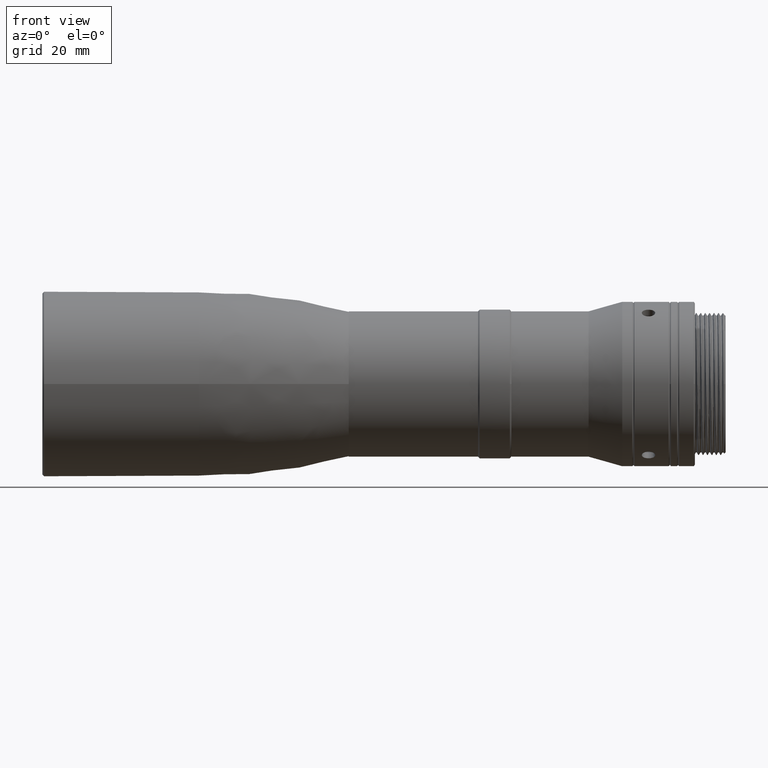
[diagram: clean part render]
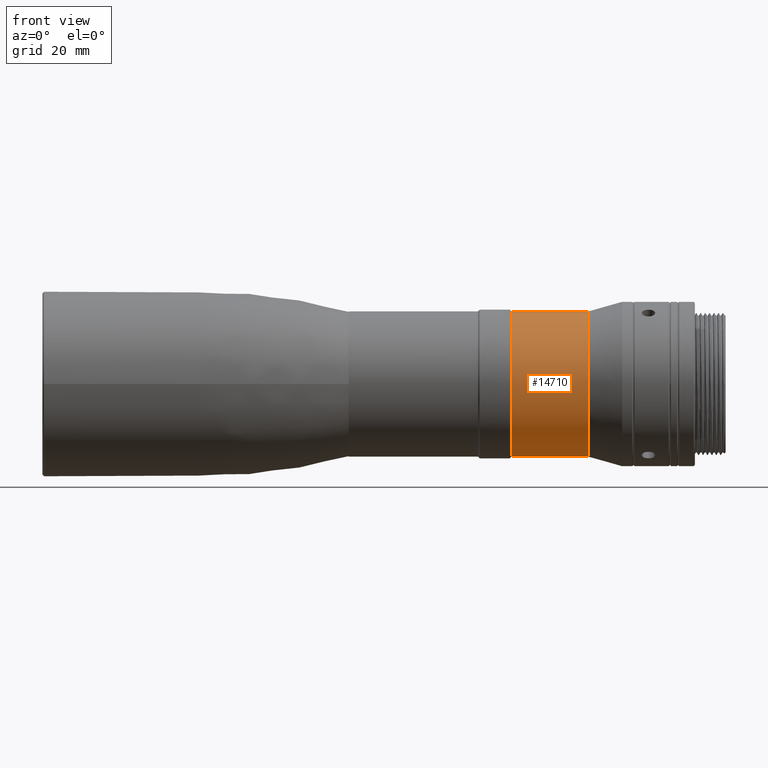
[diagram: same view with one face highlighted and labeled with its STEP entity id]
A machine part, front view. The second image highlights one B-rep face of the part: STEP entity #14710.
In plain terms, the highlighted cylindrical surface (partial cylindrical patch) has radius 13 mm, axis along (1, 0, -0).
Its self-contained STEP definition (entity closure, byte-faithful):
#571 = ORIENTED_EDGE ( 'NONE', *, *, #1409, .F. ) ;
#708 = EDGE_CURVE ( 'NONE', #1510, #6884, #8577, .T. ) ;
#1409 = EDGE_CURVE ( 'NONE', #10563, #6884, #10941, .T. ) ;
#1434 = DIRECTION ( 'NONE',  ( 1.000000000000000000, 0.000000000000000000, -1.334402673828313093E-16 ) ) ;
#1510 = VERTEX_POINT ( 'NONE', #13582 ) ;
#1827 = AXIS2_PLACEMENT_3D ( 'NONE', #7698, #7897, #18255 ) ;
#2170 = ORIENTED_EDGE ( 'NONE', *, *, #17284, .F. ) ;
#2239 = AXIS2_PLACEMENT_3D ( 'NONE', #18258, #13953, #3779 ) ;
#3674 = LINE ( 'NONE', #5293, #8969 ) ;
#3779 = DIRECTION ( 'NONE',  ( 0.000000000000000000, 0.000000000000000000, -1.000000000000000000 ) ) ;
#5293 = CARTESIAN_POINT ( 'NONE',  ( 29.11799999999999145, 1.592040838891559293E-15, 13.00000000000000178 ) ) ;
#5726 = CARTESIAN_POINT ( 'NONE',  ( 29.11799999999999145, 0.000000000000000000, -13.00000000000000178 ) ) ;
#5760 = EDGE_CURVE ( 'NONE', #11170, #1510, #18648, .T. ) ;
#6079 = EDGE_LOOP ( 'NONE', ( #2170, #11332, #10910, #571 ) ) ;
#6552 = DIRECTION ( 'NONE',  ( 1.000000000000000000, 0.000000000000000000, -1.334402673828313093E-16 ) ) ;
#6669 = FACE_OUTER_BOUND ( 'NONE', #6079, .T. ) ;
#6884 = VERTEX_POINT ( 'NONE', #13214 ) ;
#7698 = CARTESIAN_POINT ( 'NONE',  ( 42.91800000000000637, 0.000000000000000000, 0.000000000000000000 ) ) ;
#7897 = DIRECTION ( 'NONE',  ( 1.000000000000000000, 0.000000000000000000, 0.000000000000000000 ) ) ;
#7995 = CARTESIAN_POINT ( 'NONE',  ( 29.11799999999999145, 0.000000000000000000, 0.000000000000000000 ) ) ;
#8577 = LINE ( 'NONE', #5726, #10580 ) ;
#8969 = VECTOR ( 'NONE', #6552, 1000.000000000000000 ) ;
#10563 = VERTEX_POINT ( 'NONE', #14000 ) ;
#10580 = VECTOR ( 'NONE', #1434, 1000.000000000000000 ) ;
#10910 = ORIENTED_EDGE ( 'NONE', *, *, #708, .T. ) ;
#10941 = CIRCLE ( 'NONE', #1827, 13.00000000000000178 ) ;
#11170 = VERTEX_POINT ( 'NONE', #15174 ) ;
#11332 = ORIENTED_EDGE ( 'NONE', *, *, #5760, .T. ) ;
#12022 = AXIS2_PLACEMENT_3D ( 'NONE', #7995, #14045, #13873 ) ;
#13214 = CARTESIAN_POINT ( 'NONE',  ( 42.91800000000000637, 0.000000000000000000, -13.00000000000000355 ) ) ;
#13582 = CARTESIAN_POINT ( 'NONE',  ( 29.11799999999999145, 0.000000000000000000, -13.00000000000000178 ) ) ;
#13873 = DIRECTION ( 'NONE',  ( 0.000000000000000000, 0.000000000000000000, -1.000000000000000000 ) ) ;
#13953 = DIRECTION ( 'NONE',  ( 1.000000000000000000, 0.000000000000000000, -1.334402673828313093E-16 ) ) ;
#14000 = CARTESIAN_POINT ( 'NONE',  ( 42.91800000000000637, 1.696135816819084405E-15, 13.00000000000000355 ) ) ;
#14045 = DIRECTION ( 'NONE',  ( 1.000000000000000000, 0.000000000000000000, -1.334402673828313093E-16 ) ) ;
#14710 = ADVANCED_FACE ( 'NONE', ( #6669 ), #16917, .T. ) ;
#15174 = CARTESIAN_POINT ( 'NONE',  ( 29.11799999999999145, 1.592040838891559293E-15, 13.00000000000000178 ) ) ;
#16917 = CYLINDRICAL_SURFACE ( 'NONE', #12022, 13.00000000000000178 ) ;
#17284 = EDGE_CURVE ( 'NONE', #11170, #10563, #3674, .T. ) ;
#18255 = DIRECTION ( 'NONE',  ( 0.000000000000000000, -1.000000000000000000, 0.000000000000000000 ) ) ;
#18258 = CARTESIAN_POINT ( 'NONE',  ( 29.11799999999999145, 0.000000000000000000, 0.000000000000000000 ) ) ;
#18648 = CIRCLE ( 'NONE', #2239, 13.00000000000000178 ) ;